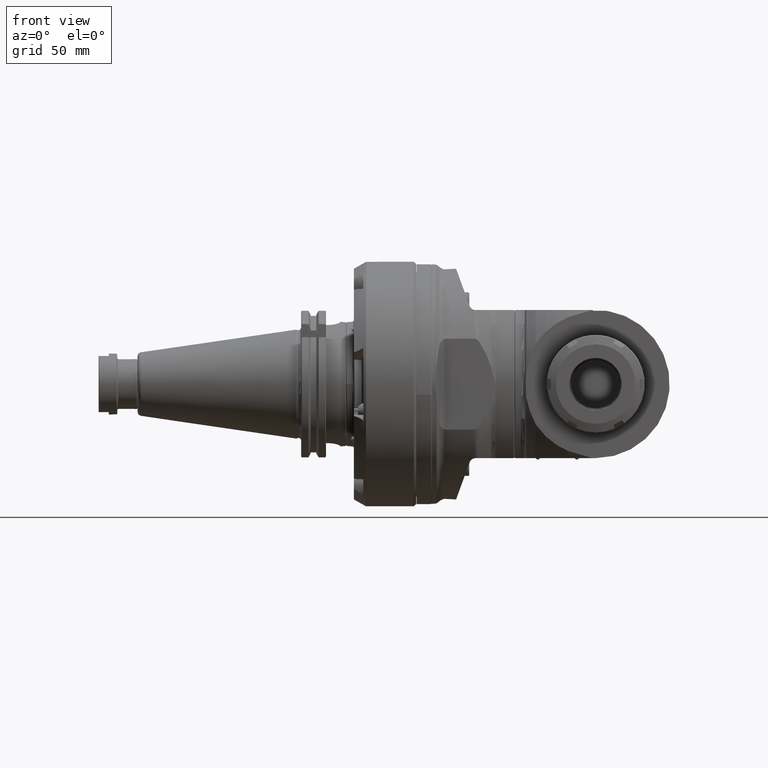
[diagram: clean part render]
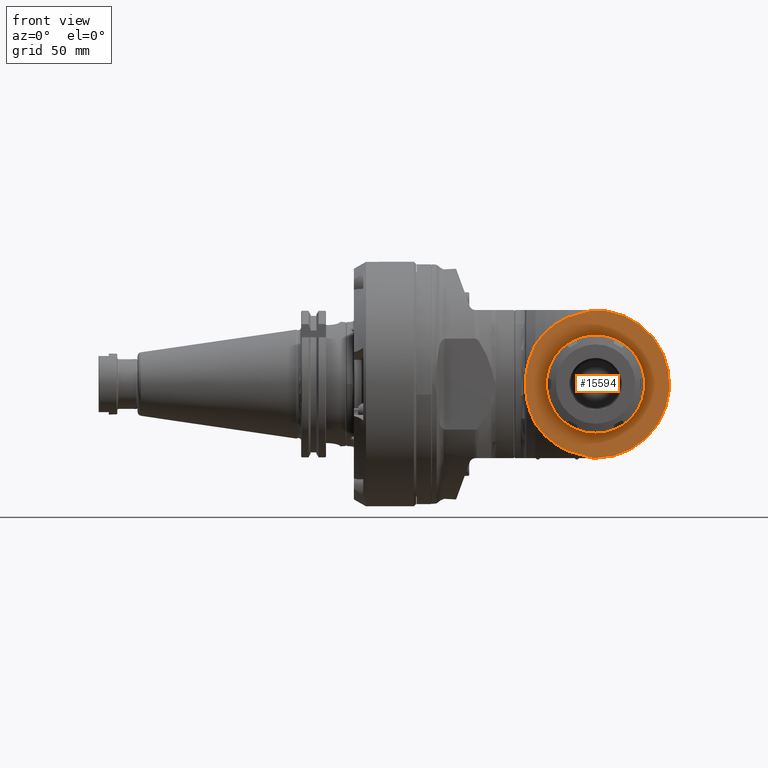
[diagram: same view with one face highlighted and labeled with its STEP entity id]
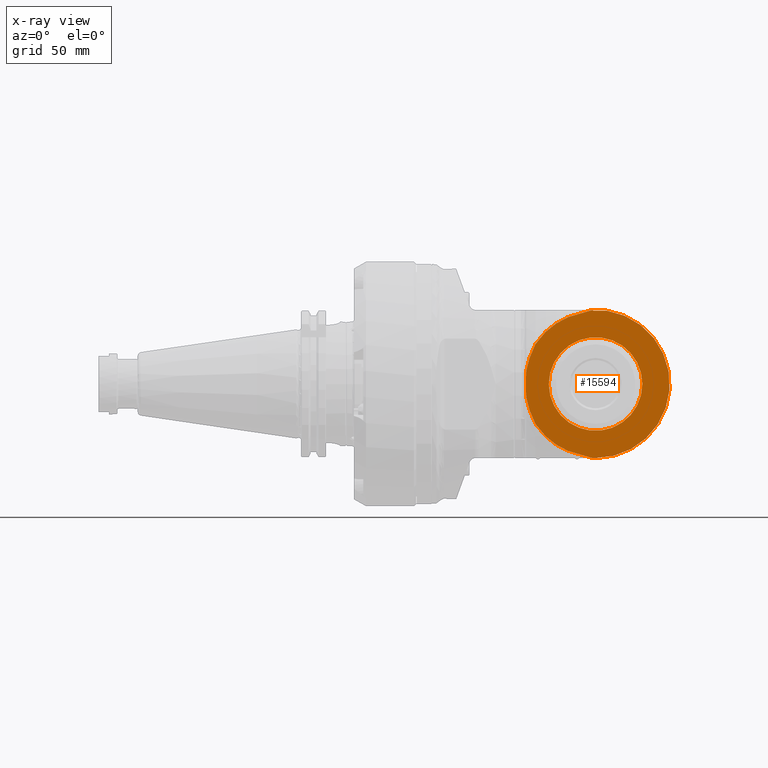
[diagram: x-ray of the same camera — body ghosted, the highlighted face saturated]
A machine part, front view. The second image highlights one B-rep face of the part: STEP entity #15594.
The next image is the same camera in x-ray: the body ghosted, the highlighted face saturated — about 0% of this face is hidden behind the body in this view.
In plain terms, the highlighted planar face has unit normal (-0, 1, 0).
Its self-contained STEP definition (entity closure, byte-faithful):
#191=(
BOUNDED_CURVE()
B_SPLINE_CURVE(2,(#44354,#44355,#44356),.UNSPECIFIED.,.F.,.F.)
B_SPLINE_CURVE_WITH_KNOTS((3,3),(-7.14257068760308,-6.17511928268782),
 .UNSPECIFIED.)
CURVE()
GEOMETRIC_REPRESENTATION_ITEM()
RATIONAL_B_SPLINE_CURVE((1.01558689173965,1.01677760960209,1.01735980298598))
REPRESENTATION_ITEM('')
);
#192=(
BOUNDED_CURVE()
B_SPLINE_CURVE(2,(#44359,#44360,#44361),.UNSPECIFIED.,.F.,.F.)
B_SPLINE_CURVE_WITH_KNOTS((3,3),(-6.24794427567364,-4.54718196220632),
 .UNSPECIFIED.)
CURVE()
GEOMETRIC_REPRESENTATION_ITEM()
RATIONAL_B_SPLINE_CURVE((1.00592543361025,1.00653262944425,1.00637018457724))
REPRESENTATION_ITEM('')
);
#193=(
BOUNDED_CURVE()
B_SPLINE_CURVE(2,(#44366,#44367,#44368),.UNSPECIFIED.,.F.,.F.)
B_SPLINE_CURVE_WITH_KNOTS((3,3),(2.99464183518765,4.09899127724153),
 .UNSPECIFIED.)
CURVE()
GEOMETRIC_REPRESENTATION_ITEM()
RATIONAL_B_SPLINE_CURVE((1.02512893334103,1.02809941090005,1.02984335319827))
REPRESENTATION_ITEM('')
);
#194=(
BOUNDED_CURVE()
B_SPLINE_CURVE(2,(#44370,#44371,#44372),.UNSPECIFIED.,.F.,.F.)
B_SPLINE_CURVE_WITH_KNOTS((3,3),(2.3999513230796,3.81193842969159),
 .UNSPECIFIED.)
CURVE()
GEOMETRIC_REPRESENTATION_ITEM()
RATIONAL_B_SPLINE_CURVE((1.03206051114381,1.03923173017121,1.04374362954048))
REPRESENTATION_ITEM('')
);
#195=(
BOUNDED_CURVE()
B_SPLINE_CURVE(2,(#44374,#44375,#44376),.UNSPECIFIED.,.F.,.F.)
B_SPLINE_CURVE_WITH_KNOTS((3,3),(16.3002140922548,19.3818852881198),
 .UNSPECIFIED.)
CURVE()
GEOMETRIC_REPRESENTATION_ITEM()
RATIONAL_B_SPLINE_CURVE((1.44314625802972,1.43312365891465,1.40347217915788))
REPRESENTATION_ITEM('')
);
#196=(
BOUNDED_CURVE()
B_SPLINE_CURVE(2,(#44378,#44379,#44380),.UNSPECIFIED.,.F.,.F.)
B_SPLINE_CURVE_WITH_KNOTS((3,3),(-25.9431464520768,-22.0396080975453),
 .UNSPECIFIED.)
CURVE()
GEOMETRIC_REPRESENTATION_ITEM()
RATIONAL_B_SPLINE_CURVE((2.13794244357292,2.15310528828989,2.13794244357184))
REPRESENTATION_ITEM('')
);
#197=(
BOUNDED_CURVE()
B_SPLINE_CURVE(2,(#44382,#44383,#44384),.UNSPECIFIED.,.F.,.F.)
B_SPLINE_CURVE_WITH_KNOTS((3,3),(10.0715111767078,13.1531823724628),
 .UNSPECIFIED.)
CURVE()
GEOMETRIC_REPRESENTATION_ITEM()
RATIONAL_B_SPLINE_CURVE((1.40347217915786,1.43312365891357,1.443146258029))
REPRESENTATION_ITEM('')
);
#198=(
BOUNDED_CURVE()
B_SPLINE_CURVE(2,(#44386,#44387,#44388),.UNSPECIFIED.,.F.,.F.)
B_SPLINE_CURVE_WITH_KNOTS((3,3),(8.60319676243282,10.0151838690926),
 .UNSPECIFIED.)
CURVE()
GEOMETRIC_REPRESENTATION_ITEM()
RATIONAL_B_SPLINE_CURVE((1.04374362954048,1.03923173017107,1.03206051114333))
REPRESENTATION_ITEM('')
);
#199=(
BOUNDED_CURVE()
B_SPLINE_CURVE(2,(#44390,#44391,#44392),.UNSPECIFIED.,.F.,.F.)
B_SPLINE_CURVE_WITH_KNOTS((3,3),(7.2394174281471,8.34376687020015),
 .UNSPECIFIED.)
CURVE()
GEOMETRIC_REPRESENTATION_ITEM()
RATIONAL_B_SPLINE_CURVE((1.02984335319827,1.02809941090005,1.02512893334103))
REPRESENTATION_ITEM('')
);
#200=(
BOUNDED_CURVE()
B_SPLINE_CURVE(2,(#44394,#44395,#44396),.UNSPECIFIED.,.F.,.F.)
B_SPLINE_CURVE_WITH_KNOTS((3,3),(6.17511928268732,7.14257068760307),
 .UNSPECIFIED.)
CURVE()
GEOMETRIC_REPRESENTATION_ITEM()
RATIONAL_B_SPLINE_CURVE((1.01735980298597,1.01677760960208,1.01558689173965))
REPRESENTATION_ITEM('')
);
#201=(
BOUNDED_CURVE()
B_SPLINE_CURVE(2,(#44398,#44399,#44400),.UNSPECIFIED.,.F.,.F.)
B_SPLINE_CURVE_WITH_KNOTS((3,3),(-6.24794427567615,-4.53993185015261),
 .UNSPECIFIED.)
CURVE()
GEOMETRIC_REPRESENTATION_ITEM()
RATIONAL_B_SPLINE_CURVE((1.00592543361022,1.00653521783521,1.00636878563179))
REPRESENTATION_ITEM('')
);
#561=FACE_BOUND('',#2641,.T.);
#1087=PLANE('',#16958);
#1734=FACE_OUTER_BOUND('',#2640,.T.);
#2640=EDGE_LOOP('',(#12731,#12732,#12733,#12734,#12735,#12736,#12737,#12738,
#12739,#12740,#12741,#12742,#12743,#12744,#12745));
#2641=EDGE_LOOP('',(#12746));
#3673=LINE('',#44364,#4828);
#3674=LINE('',#44402,#4829);
#3675=LINE('',#44405,#4830);
#4828=VECTOR('',#20138,0.393700787401575);
#4829=VECTOR('',#20139,0.393700787401575);
#4830=VECTOR('',#20142,0.330073308672913);
#5830=CIRCLE('',#16959,1.87007874015748);
#5831=CIRCLE('',#16960,1.18110236220472);
#6954=VERTEX_POINT('',#44250);
#6985=VERTEX_POINT('',#44351);
#6986=VERTEX_POINT('',#44353);
#6987=VERTEX_POINT('',#44363);
#6988=VERTEX_POINT('',#44365);
#6989=VERTEX_POINT('',#44369);
#6990=VERTEX_POINT('',#44373);
#6991=VERTEX_POINT('',#44377);
#6992=VERTEX_POINT('',#44381);
#6993=VERTEX_POINT('',#44385);
#6994=VERTEX_POINT('',#44389);
#6995=VERTEX_POINT('',#44393);
#6996=VERTEX_POINT('',#44397);
#6997=VERTEX_POINT('',#44401);
#6998=VERTEX_POINT('',#44403);
#6999=VERTEX_POINT('',#44406);
#9053=EDGE_CURVE('',#6985,#6986,#191,.T.);
#9055=EDGE_CURVE('',#6986,#6954,#192,.T.);
#9056=EDGE_CURVE('',#6987,#6954,#3673,.T.);
#9057=EDGE_CURVE('',#6988,#6985,#193,.T.);
#9058=EDGE_CURVE('',#6989,#6988,#194,.T.);
#9059=EDGE_CURVE('',#6990,#6989,#195,.T.);
#9060=EDGE_CURVE('',#6991,#6990,#196,.F.);
#9061=EDGE_CURVE('',#6992,#6991,#197,.T.);
#9062=EDGE_CURVE('',#6993,#6992,#198,.T.);
#9063=EDGE_CURVE('',#6994,#6993,#199,.T.);
#9064=EDGE_CURVE('',#6995,#6994,#200,.T.);
#9065=EDGE_CURVE('',#6996,#6995,#201,.F.);
#9066=EDGE_CURVE('',#6996,#6997,#3674,.T.);
#9067=EDGE_CURVE('',#6997,#6998,#5830,.T.);
#9068=EDGE_CURVE('',#6998,#6987,#3675,.T.);
#9069=EDGE_CURVE('',#6999,#6999,#5831,.T.);
#12731=ORIENTED_EDGE('',*,*,#9056,.T.);
#12732=ORIENTED_EDGE('',*,*,#9055,.F.);
#12733=ORIENTED_EDGE('',*,*,#9053,.F.);
#12734=ORIENTED_EDGE('',*,*,#9057,.F.);
#12735=ORIENTED_EDGE('',*,*,#9058,.F.);
#12736=ORIENTED_EDGE('',*,*,#9059,.F.);
#12737=ORIENTED_EDGE('',*,*,#9060,.F.);
#12738=ORIENTED_EDGE('',*,*,#9061,.F.);
#12739=ORIENTED_EDGE('',*,*,#9062,.F.);
#12740=ORIENTED_EDGE('',*,*,#9063,.F.);
#12741=ORIENTED_EDGE('',*,*,#9064,.F.);
#12742=ORIENTED_EDGE('',*,*,#9065,.F.);
#12743=ORIENTED_EDGE('',*,*,#9066,.T.);
#12744=ORIENTED_EDGE('',*,*,#9067,.T.);
#12745=ORIENTED_EDGE('',*,*,#9068,.T.);
#12746=ORIENTED_EDGE('',*,*,#9069,.T.);
#15594=ADVANCED_FACE('',(#1734,#561),#1087,.F.);
#16958=AXIS2_PLACEMENT_3D('',#44362,#20136,#20137);
#16959=AXIS2_PLACEMENT_3D('',#44404,#20140,#20141);
#16960=AXIS2_PLACEMENT_3D('',#44407,#20143,#20144);
#20136=DIRECTION('center_axis',(0.,1.,4.660711712401E-9));
#20137=DIRECTION('ref_axis',(1.,0.,0.));
#20138=DIRECTION('',(-0.707106781186498,-3.29562085699455E-9,0.707106781186597));
#20139=DIRECTION('',(1.,0.,0.));
#20140=DIRECTION('center_axis',(0.,-1.,-4.660711712401E-9));
#20141=DIRECTION('ref_axis',(8.76323060526197E-8,4.66071171240098E-9,-0.999999999999996));
#20142=DIRECTION('',(-1.,-4.465204030832E-11,6.493943709388E-9));
#20143=DIRECTION('center_axis',(0.,1.,4.660711712401E-9));
#20144=DIRECTION('ref_axis',(1.,0.,0.));
#44250=CARTESIAN_POINT('',(3.58251309494096,-2.77528090883167,1.86968420124073));
#44351=CARTESIAN_POINT('',(2.66803838825078,-2.77559055831132,1.52987079239662));
#44353=CARTESIAN_POINT('',(2.96190065656337,-2.77559055904345,1.68695158435736));
#44354=CARTESIAN_POINT('Ctrl Pts',(2.66803838825207,-2.77559055831132,1.52987079239729));
#44355=CARTESIAN_POINT('Ctrl Pts',(2.80779472192876,-2.77559055867289,1.60744750253744));
#44356=CARTESIAN_POINT('Ctrl Pts',(2.96190065656453,-2.77559055904343,1.68695158435808));
#44359=CARTESIAN_POINT('Ctrl Pts',(2.96190065656414,-2.77559055904343,1.68695158435747));
#44360=CARTESIAN_POINT('Ctrl Pts',(3.25640556758618,-2.77559055946201,1.77676116441725));
#44361=CARTESIAN_POINT('Ctrl Pts',(3.58274272531499,-2.77559055989326,1.86928966232398));
#44362=CARTESIAN_POINT('Origin',(0.994699173228346,-2.77559053202441,-4.11023632789764));
#44363=CARTESIAN_POINT('',(3.60196850393701,-2.77559055982008,1.8503937007874));
#44364=CARTESIAN_POINT('',(4.43548584701958,-2.7755905559204,1.01687635770471));
#44365=CARTESIAN_POINT('',(2.3976173042374,-2.77559055730472,1.31389341981693));
#44366=CARTESIAN_POINT('Ctrl Pts',(2.39761730423734,-2.77559055730471,1.31389341981694));
#44367=CARTESIAN_POINT('Ctrl Pts',(2.52255891564324,-2.77559055780008,1.42017881452545));
#44368=CARTESIAN_POINT('Ctrl Pts',(2.66803838825215,-2.77559055831132,1.52987079239772));
#44369=CARTESIAN_POINT('',(2.14432908527953,-2.77559055587559,1.00740483603622));
#44370=CARTESIAN_POINT('Ctrl Pts',(2.14432908528403,-2.77559055587626,1.0074048360402));
#44371=CARTESIAN_POINT('Ctrl Pts',(2.25425195989716,-2.77559055657648,1.15764433789158));
#44372=CARTESIAN_POINT('Ctrl Pts',(2.39761730423742,-2.77559055730471,1.31389341981691));
#44373=CARTESIAN_POINT('',(1.91085503038086,-2.77559051574573,0.331155054818972));
#44374=CARTESIAN_POINT('Ctrl Pts',(1.91085518218069,-2.77559055272445,0.331155115743859));
#44375=CARTESIAN_POINT('Ctrl Pts',(1.96861582175992,-2.77559055425718,0.660016291900423));
#44376=CARTESIAN_POINT('Ctrl Pts',(2.14432908527999,-2.77559055587626,1.00740483603484));
#44377=CARTESIAN_POINT('',(1.91085503038266,-2.77559051265825,-0.331155080715145));
#44378=CARTESIAN_POINT('Ctrl Pts',(1.91085501621292,-2.77559055272445,0.331155056359286));
#44379=CARTESIAN_POINT('Ctrl Pts',(1.88820452999733,-2.77559055118104,-1.29479309496361E-8));
#44380=CARTESIAN_POINT('Ctrl Pts',(1.91085501621454,-2.77559054963762,-0.331155082255481));
#44381=CARTESIAN_POINT('',(2.14432908527953,-2.77559054648504,-1.00740486190906));
#44382=CARTESIAN_POINT('Ctrl Pts',(2.14432908528015,-2.77559054648581,-1.0074048619076));
#44383=CARTESIAN_POINT('Ctrl Pts',(1.96861582176616,-2.77559054810489,-0.660016317785311));
#44384=CARTESIAN_POINT('Ctrl Pts',(1.91085518218483,-2.77559054963762,-0.331155141639911));
#44385=CARTESIAN_POINT('',(2.3976173042374,-2.77559054505709,-1.31389344568976));
#44386=CARTESIAN_POINT('Ctrl Pts',(2.39761730423761,-2.77559054505736,-1.31389344568957));
#44387=CARTESIAN_POINT('Ctrl Pts',(2.25425195989246,-2.77559054578559,-1.15764436375893));
#44388=CARTESIAN_POINT('Ctrl Pts',(2.14432908527668,-2.77559054648581,-1.00740486190261));
#44389=CARTESIAN_POINT('',(2.66803838825078,-2.77559054405075,-1.52987081826908));
#44390=CARTESIAN_POINT('Ctrl Pts',(2.66803838825215,-2.77559054405075,-1.52987081827017));
#44391=CARTESIAN_POINT('Ctrl Pts',(2.52255891564334,-2.77559054456199,-1.42017884039799));
#44392=CARTESIAN_POINT('Ctrl Pts',(2.39761730423753,-2.77559054505736,-1.31389344568956));
#44393=CARTESIAN_POINT('',(2.9619006565634,-2.77559054331861,-1.68695161023008));
#44394=CARTESIAN_POINT('Ctrl Pts',(2.96190065656468,-2.77559054331864,-1.68695161023062));
#44395=CARTESIAN_POINT('Ctrl Pts',(2.80779472192883,-2.77559054368919,-1.60744752840993));
#44396=CARTESIAN_POINT('Ctrl Pts',(2.66803838825207,-2.77559054405075,-1.52987081826975));
#44397=CARTESIAN_POINT('',(3.5855260230349,-2.77559054246503,-1.87007874015755));
#44398=CARTESIAN_POINT('Ctrl Pts',(2.96190065656336,-2.77559054331864,-1.68695161023022));
#44399=CARTESIAN_POINT('Ctrl Pts',(3.25766024029031,-2.77559054289828,-1.77714380404115));
#44400=CARTESIAN_POINT('Ctrl Pts',(3.58552602303511,-2.77559054246514,-1.87007874015681));
#44401=CARTESIAN_POINT('',(3.66141737746102,-2.77559054246517,-1.87007874661672));
#44402=CARTESIAN_POINT('',(1.03475672272795,-2.77559054246514,-1.87007874015748));
#44403=CARTESIAN_POINT('',(3.93204181242814,-2.77559055980518,1.85039369794773));
#44404=CARTESIAN_POINT('Origin',(3.66141732283465,-2.7755905511811,-1.29362273907205E-8));
#44405=CARTESIAN_POINT('',(3.93204181260984,-2.77559055980512,1.85039369864409));
#44406=CARTESIAN_POINT('',(2.48031496366024,-2.7755905511811,-1.29362272075472E-8));
#44407=CARTESIAN_POINT('Origin',(3.66141732586496,-2.7755905511811,-1.29362273907205E-8));